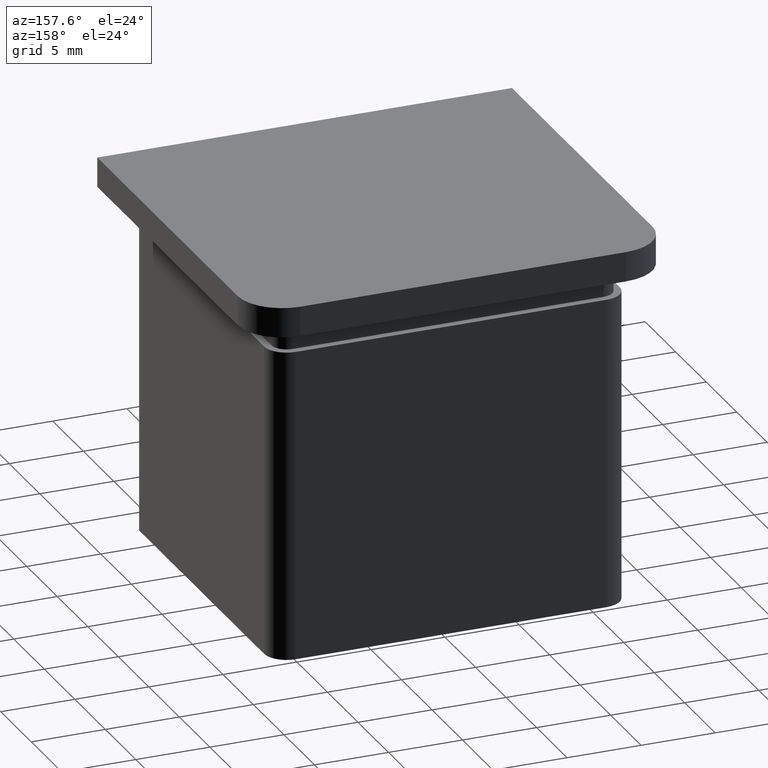
[diagram: clean part render]
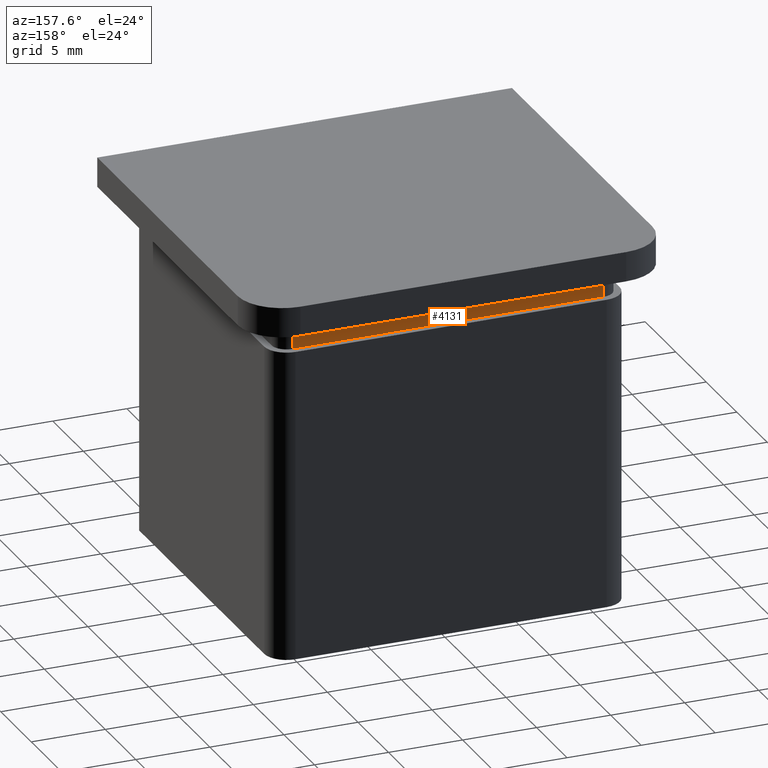
[diagram: same view with one face highlighted and labeled with its STEP entity id]
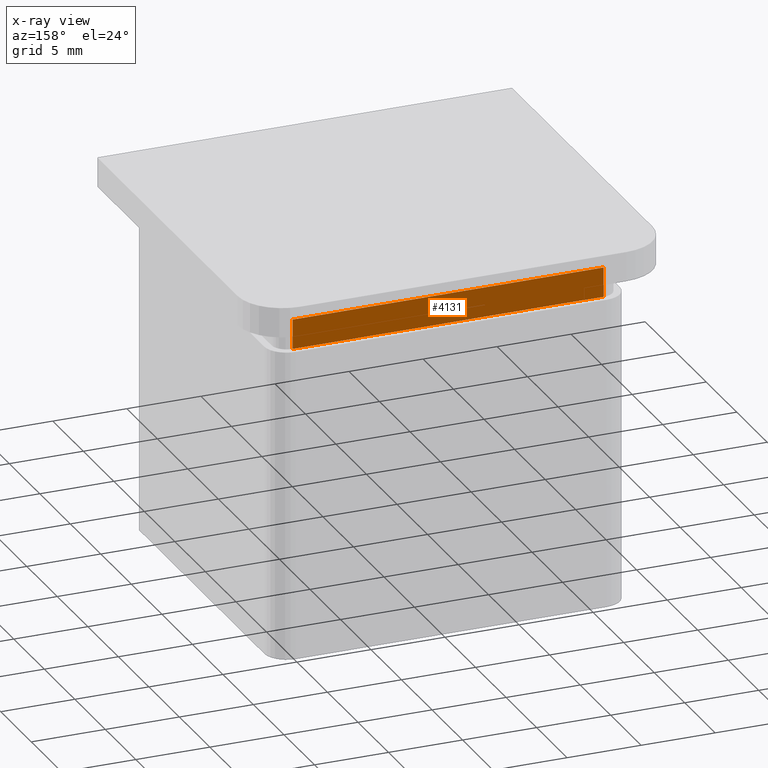
[diagram: x-ray of the same camera — body ghosted, the highlighted face saturated]
A machine part, auxiliary view. The second image highlights one B-rep face of the part: STEP entity #4131.
The next image is the same camera in x-ray: the body ghosted, the highlighted face saturated — about 0% of this face is hidden behind the body in this view.
In plain terms, the highlighted planar face has unit normal (0, 1, 0).
Its self-contained STEP definition (entity closure, byte-faithful):
#2 = EDGE_CURVE ( 'NONE', #6964, #5, #1871, .T. ) ;
#5 = VERTEX_POINT ( 'NONE', #14395 ) ;
#822 = EDGE_CURVE ( 'NONE', #5843, #16463, #1646, .T. ) ;
#1553 = CARTESIAN_POINT ( 'NONE',  ( -10.49999999999998757, 10.50000000000000000, -2.000000000000000000 ) ) ;
#1613 = PLANE ( 'NONE',  #11541 ) ;
#1646 = LINE ( 'NONE', #3346, #9632 ) ;
#1871 = LINE ( 'NONE', #15691, #8242 ) ;
#2595 = CARTESIAN_POINT ( 'NONE',  ( -10.49999999999998757, 10.50000000000000000, -2.000000000000000000 ) ) ;
#3006 = LINE ( 'NONE', #2595, #3392 ) ;
#3071 = DIRECTION ( 'NONE',  ( 0.000000000000000000, 0.000000000000000000, 1.000000000000000000 ) ) ;
#3321 = ORIENTED_EDGE ( 'NONE', *, *, #2, .T. ) ;
#3346 = CARTESIAN_POINT ( 'NONE',  ( 10.49999999999999289, 10.50000000000000000, -2.000000000000000000 ) ) ;
#3392 = VECTOR ( 'NONE', #4966, 1000.000000000000000 ) ;
#3486 = EDGE_LOOP ( 'NONE', ( #9108, #15231, #16360, #3321 ) ) ;
#3795 = CARTESIAN_POINT ( 'NONE',  ( -10.49999999999998757, 10.50000000000000000, 0.000000000000000000 ) ) ;
#3803 = CARTESIAN_POINT ( 'NONE',  ( 10.49999999999999289, 10.50000000000000000, 0.000000000000000000 ) ) ;
#4095 = EDGE_CURVE ( 'NONE', #5, #16463, #6282, .T. ) ;
#4131 = ADVANCED_FACE ( 'NONE', ( #8056 ), #1613, .T. ) ;
#4966 = DIRECTION ( 'NONE',  ( 1.000000000000000000, 0.000000000000000000, 0.000000000000000000 ) ) ;
#5843 = VERTEX_POINT ( 'NONE', #9051 ) ;
#6282 = LINE ( 'NONE', #3795, #12682 ) ;
#6630 = DIRECTION ( 'NONE',  ( 0.000000000000000000, 1.000000000000000000, 0.000000000000000000 ) ) ;
#6964 = VERTEX_POINT ( 'NONE', #10587 ) ;
#8056 = FACE_OUTER_BOUND ( 'NONE', #3486, .T. ) ;
#8242 = VECTOR ( 'NONE', #3071, 1000.000000000000000 ) ;
#8556 = DIRECTION ( 'NONE',  ( 0.000000000000000000, 0.000000000000000000, 1.000000000000000000 ) ) ;
#8961 = DIRECTION ( 'NONE',  ( 1.000000000000000000, 0.000000000000000000, 0.000000000000000000 ) ) ;
#9051 = CARTESIAN_POINT ( 'NONE',  ( 10.49999999999999289, 10.50000000000000000, -2.000000000000000000 ) ) ;
#9108 = ORIENTED_EDGE ( 'NONE', *, *, #4095, .T. ) ;
#9305 = DIRECTION ( 'NONE',  ( 0.000000000000000000, -0.000000000000000000, 1.000000000000000000 ) ) ;
#9632 = VECTOR ( 'NONE', #8556, 1000.000000000000000 ) ;
#10093 = EDGE_CURVE ( 'NONE', #6964, #5843, #3006, .T. ) ;
#10587 = CARTESIAN_POINT ( 'NONE',  ( -10.49999999999999112, 10.50000000000007638, -2.000000000000000000 ) ) ;
#11541 = AXIS2_PLACEMENT_3D ( 'NONE', #1553, #6630, #9305 ) ;
#12682 = VECTOR ( 'NONE', #8961, 1000.000000000000000 ) ;
#14395 = CARTESIAN_POINT ( 'NONE',  ( -10.49999999999999112, 10.50000000000007638, 0.000000000000000000 ) ) ;
#15231 = ORIENTED_EDGE ( 'NONE', *, *, #822, .F. ) ;
#15691 = CARTESIAN_POINT ( 'NONE',  ( -10.49999999999999112, 10.50000000000000000, -2.000000000000000000 ) ) ;
#16360 = ORIENTED_EDGE ( 'NONE', *, *, #10093, .F. ) ;
#16463 = VERTEX_POINT ( 'NONE', #3803 ) ;